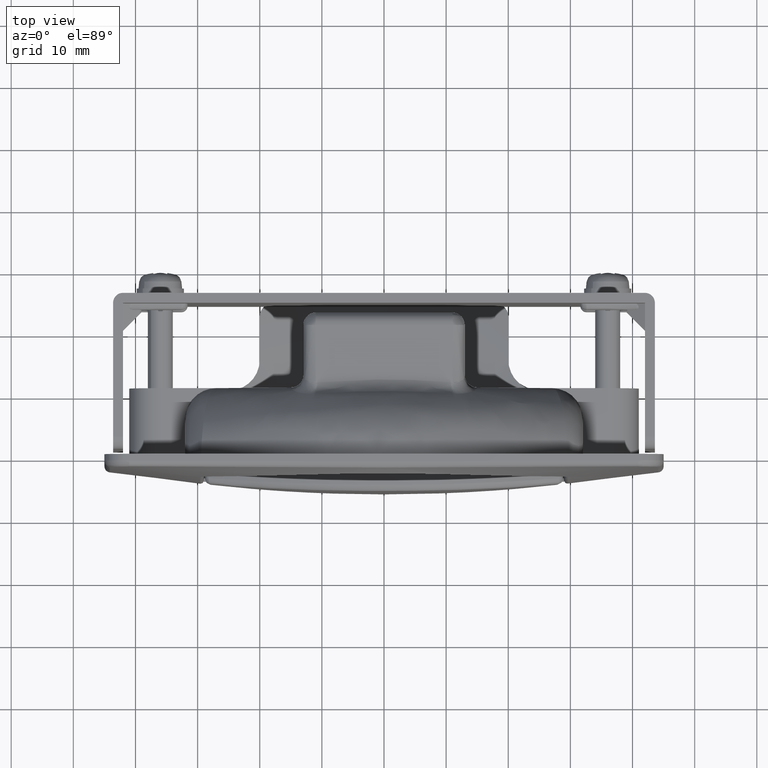
[diagram: clean part render]
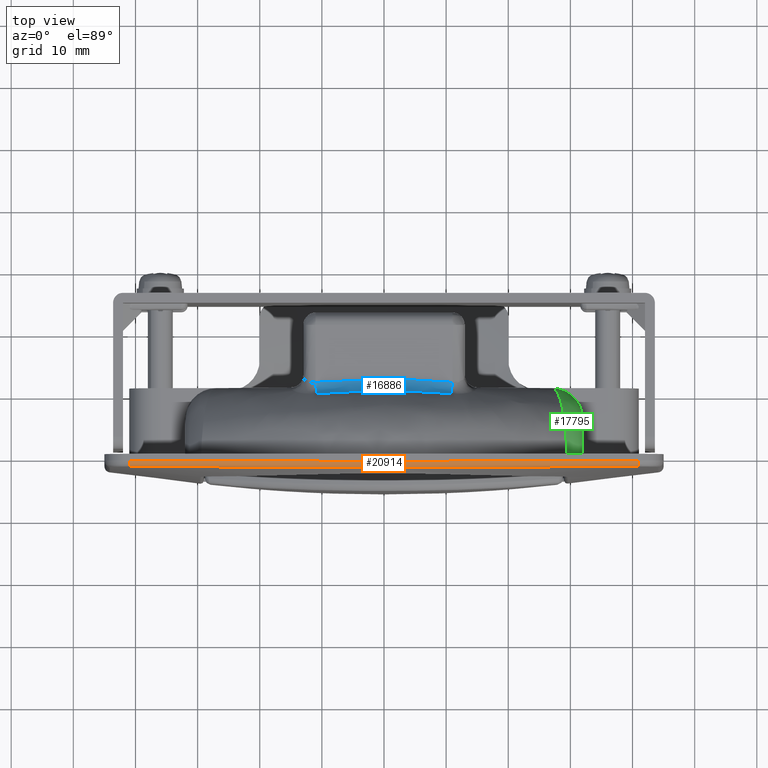
[diagram: same view with three faces highlighted in distinct colors, each labeled with its STEP entity id]
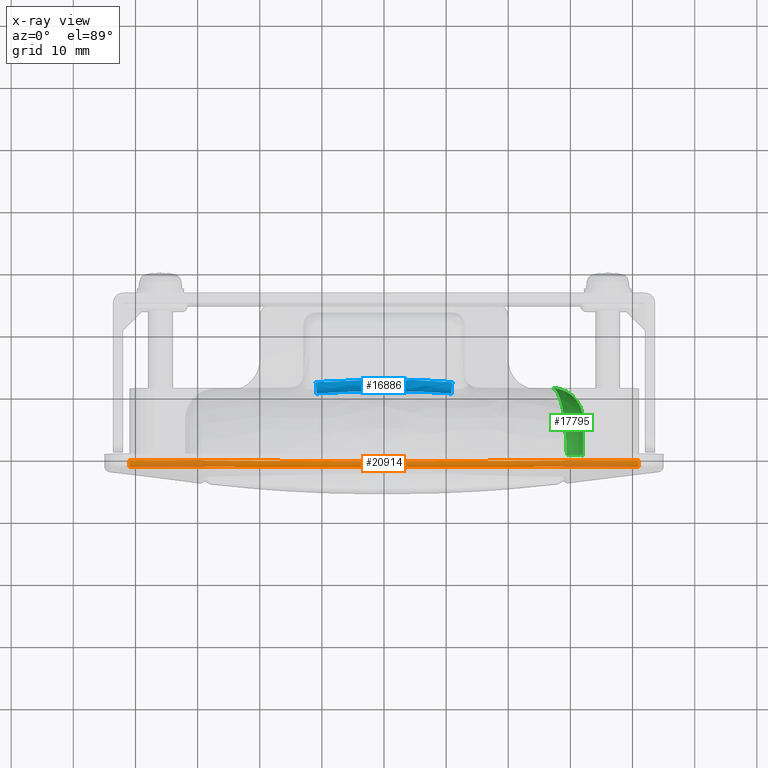
[diagram: x-ray of the same camera — body ghosted, the three highlighted faces saturated]
A machine part, top view with three faces highlighted in distinct colors.
The next image is the same camera in x-ray (body ghosted, the three faces saturated) — at least one of them is partly hidden behind the body in this view.
Their STEP definitions:

[orange] entity #20914 — the highlighted face is a freeform B-spline surface patch.
#16127=CARTESIAN_POINT('',(40.999999999999247,-1.034605952653366,60.0));
#16128=VERTEX_POINT('',#16127);
#16338=CARTESIAN_POINT('',(-41.0,-1.034605952653366,60.0));
#16339=VERTEX_POINT('',#16338);
#19166=CARTESIAN_POINT('',(-41.0,-1.034605952653326,60.0));
#19167=CARTESIAN_POINT('',(-34.166786675064309,-1.092456547469044,60.000000000000021));
#19168=CARTESIAN_POINT('',(-27.333534925995409,-1.142350992070396,60.000000000000007));
#19169=CARTESIAN_POINT('',(-13.666886508458949,-1.212132685023938,60.000000000000007));
#19170=CARTESIAN_POINT('',(-6.833492713697812,-1.232614966788253,60.000000000000007));
#19171=CARTESIAN_POINT('',(6.833492713697828,-1.232614966788255,60.000000000000007));
#19172=CARTESIAN_POINT('',(13.666886508458211,-1.212132685023942,59.999999999999993));
#19173=CARTESIAN_POINT('',(27.333534925994659,-1.142350992070405,59.999999999999957));
#19174=CARTESIAN_POINT('',(34.166786675063562,-1.092456547469056,60.000000000000007));
#19175=CARTESIAN_POINT('',(40.999999999999247,-1.034605952653340,60.0));
#19176=B_SPLINE_CURVE_WITH_KNOTS('',3,(#19166,#19167,#19168,#19169,#19170,#19171,#19172,#19173,#19174,#19175),.UNSPECIFIED.,.F.,.U.,(4,2,2,2,4),(0.0,0.250000000000000,0.500000000000000,0.750000000000000,1.0),.UNSPECIFIED.);
#19177=EDGE_CURVE('',#16339,#16128,#19176,.T.);
#20510=CARTESIAN_POINT('',(-41.008460582849857,-2.033955529790160,59.035054831539412));
#20511=VERTEX_POINT('',#20510);
#20512=CARTESIAN_POINT('',(-41.008460582849857,-2.033955529790160,59.035054831539412));
#20513=CARTESIAN_POINT('',(-41.008415942304623,-2.028682664859518,59.195007509945967));
#20514=CARTESIAN_POINT('',(-41.007767921230837,-1.952139523988996,59.464119182404787));
#20515=CARTESIAN_POINT('',(-41.005860704276117,-1.726862318919273,59.740961212939439));
#20516=CARTESIAN_POINT('',(-41.003383591981986,-1.434270051024323,59.941153487296553));
#20517=CARTESIAN_POINT('',(-41.001354900000017,-1.194644423536032,60.000295543768793));
#20518=CARTESIAN_POINT('',(-41.0,-1.034605952653366,60.0));
#20519=B_SPLINE_CURVE_WITH_KNOTS('',3,(#20512,#20513,#20514,#20515,#20516,#20517,#20518),.UNSPECIFIED.,.F.,.U.,(4,1,1,1,4),(0.000179830967145,0.480097523445805,0.816004155894794,1.055951855351917,1.535860876471716),.UNSPECIFIED.);
#20520=EDGE_CURVE('',#20511,#16339,#20519,.T.);
#20819=CARTESIAN_POINT('',(-41.827836604414863,-2.027650771109185,59.014053753863386));
#20820=CARTESIAN_POINT('',(-41.554721701862370,-2.029913698285514,59.016452023445758));
#20821=CARTESIAN_POINT('',(-41.281597728054578,-2.032176700622849,59.018850372684462));
#20822=CARTESIAN_POINT('',(-27.340235983186876,-2.147689571113166,59.141271901124021));
#20823=CARTESIAN_POINT('',(-13.670834158831335,-2.202536267515709,59.243723189432011));
#20824=CARTESIAN_POINT('',(13.670997526057780,-2.202535802740083,59.243722386544960));
#20825=CARTESIAN_POINT('',(27.340299132102221,-2.147689047271286,59.141271347111797));
#20826=CARTESIAN_POINT('',(41.281596467561855,-2.032176711079089,59.018850383742880));
#20827=CARTESIAN_POINT('',(41.554719180975027,-2.029913719197175,59.016452045561799));
#20828=CARTESIAN_POINT('',(41.827832823230210,-2.027650802475455,59.014053787036083));
#20829=CARTESIAN_POINT('',(-41.828194867803546,-2.027457462742825,59.020963737289918));
#20830=CARTESIAN_POINT('',(-41.554955341816175,-2.029704381566151,59.023353285223109));
#20831=CARTESIAN_POINT('',(-41.281711265396403,-2.031951337808853,59.025742872950971));
#20832=CARTESIAN_POINT('',(-27.340226830624466,-2.146595746184276,59.147664638099457));
#20833=CARTESIAN_POINT('',(-13.670827838136109,-2.200987209852342,59.249585489596846));
#20834=CARTESIAN_POINT('',(13.670991205289070,-2.200986749077576,59.249584691064690));
#20835=CARTESIAN_POINT('',(27.340289979581890,-2.146595226590620,59.147664086050362));
#20836=CARTESIAN_POINT('',(41.281710003663193,-2.031951348190487,59.025742883981081));
#20837=CARTESIAN_POINT('',(41.554952818399272,-2.029704402329001,59.023353307282846));
#20838=CARTESIAN_POINT('',(41.828191082751836,-2.027457493886490,59.020963770378884));
#20839=CARTESIAN_POINT('',(-41.878955170324119,-2.000068699432089,60.000000000006047));
#20840=CARTESIAN_POINT('',(-41.588019395997321,-2.000082481555735,60.000000000004022));
#20841=CARTESIAN_POINT('',(-41.297759805140480,-2.000096231647417,60.000000000002011));
#20842=CARTESIAN_POINT('',(-27.339006531303660,-2.000757481588261,59.999999999905178));
#20843=CARTESIAN_POINT('',(-13.670018745923533,-2.002697235720432,59.999999999999986));
#20844=CARTESIAN_POINT('',(13.670182103409722,-2.002697223380213,59.999999999999993));
#20845=CARTESIAN_POINT('',(27.339069685454131,-2.000757478715073,60.0));
#20846=CARTESIAN_POINT('',(41.297758367945420,-2.000096231712982,59.999999999999993));
#20847=CARTESIAN_POINT('',(41.588016514131183,-2.000082481687219,59.999999999999993));
#20848=CARTESIAN_POINT('',(41.878950836269610,-2.000068699629843,60.0));
#20849=CARTESIAN_POINT('',(-41.819566343566017,-1.020712481652010,59.999999999999986));
#20850=CARTESIAN_POINT('',(-41.546362565914421,-1.023034819978351,59.999999999999964));
#20851=CARTESIAN_POINT('',(-41.273154238425782,-1.025357196980075,59.999999999999972));
#20852=CARTESIAN_POINT('',(-27.333493788911344,-1.143849730269179,60.000000000000746));
#20853=CARTESIAN_POINT('',(-13.666851694266279,-1.226526602821456,59.999999999999957));
#20854=CARTESIAN_POINT('',(13.667015013913570,-1.226525933150712,60.000000000000007));
#20855=CARTESIAN_POINT('',(27.333556937387993,-1.143849193742074,60.0));
#20856=CARTESIAN_POINT('',(41.273152976702093,-1.025357207700038,59.999999999999972));
#20857=CARTESIAN_POINT('',(41.546360042516568,-1.023034841417846,59.999999999999986));
#20858=CARTESIAN_POINT('',(41.819562558542849,-1.020712513810624,60.0));
#20859=CARTESIAN_POINT('',(-41.819147180533641,-1.013800240000043,59.999999999999886));
#20860=CARTESIAN_POINT('',(-41.546068206976976,-1.016130724997222,59.999999999999943));
#20861=CARTESIAN_POINT('',(-41.272980163358284,-1.018461287399273,59.999999999999936));
#20862=CARTESIAN_POINT('',(-27.333452441909067,-1.137422699182383,60.000000000001421));
#20863=CARTESIAN_POINT('',(-13.666826952997031,-1.220463093699017,59.999999999999993));
#20864=CARTESIAN_POINT('',(13.666990272356671,-1.220462420841127,60.0));
#20865=CARTESIAN_POINT('',(27.333515590357266,-1.137422160842540,60.000000000000007));
#20866=CARTESIAN_POINT('',(41.272978902874755,-1.018461298144878,60.000000000000007));
#20867=CARTESIAN_POINT('',(41.546065686107895,-1.016130746487586,59.999999999999986));
#20868=CARTESIAN_POINT('',(41.819143399376465,-1.013800272234337,60.000000000000007));
#20876=(BOUNDED_SURFACE()B_SPLINE_SURFACE(3,2,((#20819,#20829,#20839,#20849,#20859),(#20820,#20830,#20840,#20850,#20860),(#20821,#20831,#20841,#20851,#20861),(#20822,#20832,#20842,#20852,#20862),(#20823,#20833,#20843,#20853,#20863),(#20824,#20834,#20844,#20854,#20864),(#20825,#20835,#20845,#20855,#20865),(#20826,#20836,#20846,#20856,#20866),(#20827,#20837,#20847,#20857,#20867),(#20828,#20838,#20848,#20858,#20868)),.UNSPECIFIED.,.F.,.F.,.U.)B_SPLINE_SURFACE_WITH_KNOTS((4,2,2,2,4),(3,1,1,3),(0.0,0.842466918082779,42.965812822220222,85.089158726357667,85.931625644440402),(0.0,0.016242809716745,1.640523781359821,1.656766591077459),.UNSPECIFIED.)GEOMETRIC_REPRESENTATION_ITEM()RATIONAL_B_SPLINE_SURFACE(((1.005662225856947,1.002831112928474,0.716888707158110,1.002831112928629,1.005662225857259),(1.005645525347856,1.002822762673928,0.717723732612676,1.002822762674083,1.005645525348166),(1.005628824838764,1.002814412419382,0.718558758067242,1.002814412419537,1.005628824839074),(1.004777098875090,1.002388549437545,0.761145056250106,1.002388549437676,1.004777098875353),(1.004154040628689,1.002077020314345,0.792297968569567,1.002077020314459,1.004154040628917),(1.004154045640302,1.002077022820151,0.792297717988920,1.002077022820265,1.004154045640530),(1.004777103984394,1.002388551992197,0.761144800784941,1.002388551992328,1.004777103984656),(1.005628824736578,1.002814412368289,0.718558763176552,1.002814412368444,1.005628824736887),(1.005645525143483,1.002822762571742,0.717723742831290,1.002822762571897,1.005645525143794),(1.005662225550389,1.002831112775195,0.716888722486027,1.002831112775350,1.005662225550700)))REPRESENTATION_ITEM('')SURFACE());
#20877=CARTESIAN_POINT('',(41.008460582849096,-2.033955529790175,59.035054831539412));
#20878=VERTEX_POINT('',#20877);
#20879=CARTESIAN_POINT('',(41.008460582849096,-2.033955529790175,59.035054831539412));
#20880=CARTESIAN_POINT('',(41.008419785527231,-2.029136619909225,59.178996033923902));
#20881=CARTESIAN_POINT('',(41.007934615028688,-1.971829110340704,59.400873785896849));
#20882=CARTESIAN_POINT('',(41.006348017470323,-1.784422920086715,59.682613856894008));
#20883=CARTESIAN_POINT('',(41.003924384997227,-1.498147597272541,59.922047323832892));
#20884=CARTESIAN_POINT('',(41.001490378418062,-1.210646902646069,60.000374973043762));
#20885=CARTESIAN_POINT('',(40.999999999999247,-1.034605952653366,60.0));
#20886=B_SPLINE_CURVE_WITH_KNOTS('',3,(#20879,#20880,#20881,#20882,#20883,#20884,#20885),.UNSPECIFIED.,.F.,.U.,(4,1,1,1,4),(0.000179830966730,0.432102314982669,0.672065187396919,1.007957673913533,1.535860876471733),.UNSPECIFIED.);
#20887=EDGE_CURVE('',#20878,#16128,#20886,.T.);
#20888=ORIENTED_EDGE('',*,*,#20887,.T.);
#20889=ORIENTED_EDGE('',*,*,#19177,.F.);
#20890=ORIENTED_EDGE('',*,*,#20520,.F.);
#20891=CARTESIAN_POINT('',(41.008460582849096,-2.033955529790175,59.035054831539412));
#20892=CARTESIAN_POINT('',(37.591222429568923,-2.061842269153153,59.064814647162713));
#20893=CARTESIAN_POINT('',(34.173950840234447,-2.086477777206835,59.093705388055660));
#20894=CARTESIAN_POINT('',(27.339321001040549,-2.128220673843528,59.146539695681142));
#20895=CARTESIAN_POINT('',(23.921983815464500,-2.145357810767917,59.170474776963047));
#20896=CARTESIAN_POINT('',(17.087253606975938,-2.172461614501583,59.210624264086832));
#20897=CARTESIAN_POINT('',(13.669860754078311,-2.182469266818932,59.226849117481088));
#20898=CARTESIAN_POINT('',(6.835010816954016,-2.195930665973302,59.249261997222639));
#20899=CARTESIAN_POINT('',(3.417553970609560,-2.199431447681215,59.255471673160102));
#20900=CARTESIAN_POINT('',(-3.417435853789756,-2.199431530235400,59.255471816700833));
#20901=CARTESIAN_POINT('',(-6.834924957157164,-2.195930807673542,59.249262237143682));
#20902=CARTESIAN_POINT('',(-13.669861449668190,-2.182469292851280,59.226849156830497));
#20903=CARTESIAN_POINT('',(-17.087280251058630,-2.172461534667254,59.210624135453777));
#20904=CARTESIAN_POINT('',(-23.922031643430351,-2.145357595275634,59.170474468122052));
#20905=CARTESIAN_POINT('',(-27.339363959908798,-2.128220429697695,59.146539375728089));
#20906=CARTESIAN_POINT('',(-34.173958456299822,-2.086477712463195,59.093705317045007));
#20907=CARTESIAN_POINT('',(-37.591220540803867,-2.061842284566616,59.064814663611472));
#20908=CARTESIAN_POINT('',(-41.008460582849878,-2.033955529790160,59.035054831539412));
#20909=B_SPLINE_CURVE_WITH_KNOTS('',3,(#20891,#20892,#20893,#20894,#20895,#20896,#20897,#20898,#20899,#20900,#20901,#20902,#20903,#20904,#20905,#20906,#20907,#20908),.UNSPECIFIED.,.F.,.U.,(4,2,2,2,2,2,2,2,4),(0.0,0.125000000000000,0.250000000000000,0.375000000000000,0.500000000000000,0.625000000000000,0.750000000000000,0.875000000000000,1.0),.UNSPECIFIED.);
#20910=EDGE_CURVE('',#20878,#20511,#20909,.T.);
#20911=ORIENTED_EDGE('',*,*,#20910,.F.);
#20912=EDGE_LOOP('',(#20888,#20889,#20890,#20911));
#20913=FACE_OUTER_BOUND('',#20912,.T.);
#20914=ADVANCED_FACE('',(#20913),#20876,.T.);

[blue] entity #16886 — the highlighted face is a freeform B-spline surface patch.
#15320=CARTESIAN_POINT('',(-11.0,11.749488862630839,46.0));
#15321=VERTEX_POINT('',#15320);
#15327=CARTESIAN_POINT('',(11.0,11.749488862630860,46.0));
#15328=VERTEX_POINT('',#15327);
#15329=CARTESIAN_POINT('',(-11.0,11.749488862630839,46.0));
#15330=CARTESIAN_POINT('',(-10.085275265246150,11.832044393462990,46.000000000000007));
#15331=CARTESIAN_POINT('',(-9.169966846083526,11.900217542705620,46.000000000000007));
#15332=CARTESIAN_POINT('',(-7.338405641518662,12.013294013499371,46.0));
#15333=CARTESIAN_POINT('',(-6.422152637312505,12.058191943572879,46.000000000000007));
#15334=CARTESIAN_POINT('',(-4.588857063244063,12.128532367895790,46.000000000000007));
#15335=CARTESIAN_POINT('',(-2.754771776972103,12.179413745367180,46.0));
#15336=CARTESIAN_POINT('',(-0.919290532315818,12.195897756959621,46.000000000000007));
#15337=CARTESIAN_POINT('',(0.916859093199320,12.195912408715399,46.000000000000007));
#15338=CARTESIAN_POINT('',(2.752454843395342,12.179457325086689,45.999999999999993));
#15339=CARTESIAN_POINT('',(4.586889544544190,12.128595528016280,46.000000000000007));
#15340=CARTESIAN_POINT('',(6.420667457310410,12.058261234418410,46.000000000000007));
#15341=CARTESIAN_POINT('',(7.337228090770762,12.013359952329671,45.999999999999993));
#15342=CARTESIAN_POINT('',(9.169563195760064,11.900249217842910,45.999999999999993));
#15343=CARTESIAN_POINT('',(10.085452901118250,11.832028361510270,46.000000000000007));
#15344=CARTESIAN_POINT('',(11.0,11.749488862630860,46.0));
#15345=B_SPLINE_CURVE_WITH_KNOTS('',3,(#15329,#15330,#15331,#15332,#15333,#15334,#15335,#15336,#15337,#15338,#15339,#15340,#15341,#15342,#15343,#15344),.UNSPECIFIED.,.F.,.U.,(4,2,2,1,2,1,2,2,4),(0.0,0.125000000000000,0.250000000000000,0.375000000000000,0.500000000000000,0.625000000000000,0.750000000000000,0.875000000000000,1.0),.UNSPECIFIED.);
#15346=EDGE_CURVE('',#15321,#15328,#15345,.T.);
#15871=CARTESIAN_POINT('',(-10.834544563539399,9.916223680946750,47.217847027640801));
#15872=VERTEX_POINT('',#15871);
#16056=CARTESIAN_POINT('',(10.834544563539280,9.916223680946761,47.217847027640801));
#16057=VERTEX_POINT('',#16056);
#16089=CARTESIAN_POINT('',(10.834544563539280,9.916223680946761,47.217847027640801));
#16090=CARTESIAN_POINT('',(9.933444470091528,9.988152461383859,47.239872617427672));
#16091=CARTESIAN_POINT('',(9.031229737716403,10.047392635432990,47.259472322902504));
#16092=CARTESIAN_POINT('',(7.226332384284754,10.145461226116341,47.293374599008303));
#16093=CARTESIAN_POINT('',(6.323552482120703,10.184294932795501,47.307679951428433));
#16094=CARTESIAN_POINT('',(4.517431006014910,10.245069773135549,47.330696871837603));
#16095=CARTESIAN_POINT('',(3.614089325174080,10.267007437598890,47.339408070091977));
#16096=CARTESIAN_POINT('',(1.806902852950897,10.296034748520629,47.351045328376550));
#16097=CARTESIAN_POINT('',(0.903057616764900,10.303123165395560,47.353971206051227));
#16098=CARTESIAN_POINT('',(-0.905115526996715,10.303112313755109,47.353966770447308));
#16099=CARTESIAN_POINT('',(-1.808911994125626,10.296013020781480,47.351036459479602));
#16100=CARTESIAN_POINT('',(-3.615902101365849,10.266967754781890,47.339392319388708));
#16101=CARTESIAN_POINT('',(-4.519095784832783,10.245022933076269,47.330678668777153));
#16102=CARTESIAN_POINT('',(-6.324809789850447,10.184243431632700,47.307660911010800));
#16103=CARTESIAN_POINT('',(-7.227330236029472,10.145412113041569,47.293357170314117));
#16104=CARTESIAN_POINT('',(-9.031576941955875,10.047368661461800,47.259464485767190));
#16105=CARTESIAN_POINT('',(-9.933303464955715,9.988163716878701,47.239876064016229));
#16106=CARTESIAN_POINT('',(-10.834544563539410,9.916223680946750,47.217847027640801));
#16107=B_SPLINE_CURVE_WITH_KNOTS('',3,(#16089,#16090,#16091,#16092,#16093,#16094,#16095,#16096,#16097,#16098,#16099,#16100,#16101,#16102,#16103,#16104,#16105,#16106),.UNSPECIFIED.,.F.,.U.,(4,2,2,2,2,2,2,2,4),(0.0,0.125000000000000,0.250000000000000,0.375000000000000,0.500000000000000,0.625000000000000,0.750000000000000,0.875000000000000,1.0),.UNSPECIFIED.);
#16108=EDGE_CURVE('',#16057,#15872,#16107,.T.);
#16748=CARTESIAN_POINT('',(-10.834544563539399,9.916223680946750,47.217847027640801));
#16749=CARTESIAN_POINT('',(-10.840533765152079,9.982584720616963,47.060926148302592));
#16750=CARTESIAN_POINT('',(-10.856150150870119,10.155616062548340,46.764299654616167));
#16751=CARTESIAN_POINT('',(-10.884238954665520,10.466843224948621,46.451777049157080));
#16752=CARTESIAN_POINT('',(-10.917191270128811,10.831958653530970,46.209248200691633));
#16753=CARTESIAN_POINT('',(-10.954028934765700,11.240124195855630,46.043837654856439));
#16754=CARTESIAN_POINT('',(-10.984676230969470,11.579699747103220,45.999957962950923));
#16755=CARTESIAN_POINT('',(-11.0,11.749488862630839,46.0));
#16756=B_SPLINE_CURVE_WITH_KNOTS('',3,(#16748,#16749,#16750,#16751,#16752,#16753,#16754,#16755),.UNSPECIFIED.,.F.,.U.,(4,1,1,1,1,4),(0.000000129870866,0.511439841131598,1.022907883121740,1.315115839378424,1.826583236134149,2.338023269023774),.UNSPECIFIED.);
#16757=EDGE_CURVE('',#15872,#15321,#16756,.T.);
#16793=CARTESIAN_POINT('',(11.048727389745027,9.890457986170432,47.232771275925401));
#16794=CARTESIAN_POINT('',(10.977074599950388,9.896190558069135,47.234545290240732));
#16795=CARTESIAN_POINT('',(10.905422560693427,9.901923069921171,47.236319285973906));
#16796=CARTESIAN_POINT('',(9.042732940109692,10.050947304784438,47.282436653649839));
#16797=CARTESIAN_POINT('',(7.238170109331803,10.145401212936177,47.317213893949649));
#16798=CARTESIAN_POINT('',(3.621837551723821,10.267727912530907,47.363948882446863));
#16799=CARTESIAN_POINT('',(1.808708773072213,10.295686779299450,47.375935642776383));
#16800=CARTESIAN_POINT('',(-1.819707300247921,10.295569972663142,47.375887496960601));
#16801=CARTESIAN_POINT('',(-3.631867602680482,10.267488823297921,47.363852447877278));
#16802=CARTESIAN_POINT('',(-7.244052490146809,10.145101602715654,47.317104538949486));
#16803=CARTESIAN_POINT('',(-9.044073684811432,10.050840029683814,47.282403488650957));
#16804=CARTESIAN_POINT('',(-10.905368914797716,9.901927362213927,47.236320612972484));
#16805=CARTESIAN_POINT('',(-10.976967306919535,9.896199142753828,47.234547944268620));
#16806=CARTESIAN_POINT('',(-11.048566448339656,9.890470863346208,47.232775257013181));
#16807=CARTESIAN_POINT('',(11.049110089688293,9.894754745818066,47.222698788579251));
#16808=CARTESIAN_POINT('',(10.977458776224644,9.900480694278970,47.224461509302309));
#16809=CARTESIAN_POINT('',(10.905807838643048,9.906206612701595,47.226224220778114));
#16810=CARTESIAN_POINT('',(9.043015386437718,10.055069949032326,47.272051473615505));
#16811=CARTESIAN_POINT('',(7.238378548008080,10.149383856898757,47.306614907601436));
#16812=CARTESIAN_POINT('',(3.621927657511076,10.271518496210216,47.353068706629074));
#16813=CARTESIAN_POINT('',(1.808753706127688,10.299424337929596,47.364984634469849));
#16814=CARTESIAN_POINT('',(-1.819752506951826,10.299307738399895,47.364936772599393));
#16815=CARTESIAN_POINT('',(-3.631957993946394,10.271279816722402,47.352972844667406));
#16816=CARTESIAN_POINT('',(-7.244261164106151,10.149084682803419,47.306506219067927));
#16817=CARTESIAN_POINT('',(-9.044356218936008,10.054962793168464,47.272018502110072));
#16818=CARTESIAN_POINT('',(-10.905754197275535,9.906210899580884,47.226225539836797));
#16819=CARTESIAN_POINT('',(-10.977351492868827,9.900489268087135,47.224464147434865));
#16820=CARTESIAN_POINT('',(-11.048949163723528,9.894767606604731,47.222702745801016));
#16821=CARTESIAN_POINT('',(11.095566018691022,10.416338207326357,46.0));
#16822=CARTESIAN_POINT('',(11.024108843643289,10.421426824573361,46.000000000000007));
#16823=CARTESIAN_POINT('',(10.952606660087037,10.426518646971880,46.0));
#16824=CARTESIAN_POINT('',(9.077611442220483,10.560041039892033,46.0));
#16825=CARTESIAN_POINT('',(7.264074314828986,10.640353634781517,45.999999999999993));
#16826=CARTESIAN_POINT('',(3.633133296377618,10.742918981110586,46.0));
#16827=CARTESIAN_POINT('',(1.814354371252460,10.765291037850290,46.000000000000007));
#16828=CARTESIAN_POINT('',(-1.825387229413264,10.765195996853306,46.0));
#16829=CARTESIAN_POINT('',(-3.643198930386014,10.742722667960603,45.999999999999993));
#16830=CARTESIAN_POINT('',(-7.269985413674422,10.640098255130539,46.0));
#16831=CARTESIAN_POINT('',(-9.078962776443733,10.559944808471787,46.0));
#16832=CARTESIAN_POINT('',(-10.952553582282036,10.426522426756696,46.000000000000007));
#16833=CARTESIAN_POINT('',(-11.024002762090568,10.421434378869217,46.0));
#16834=CARTESIAN_POINT('',(-11.095407007339729,10.416349530867175,46.0));
#16835=CARTESIAN_POINT('',(11.220394982256730,11.740636429142528,46.0));
#16836=CARTESIAN_POINT('',(11.147259707081336,11.747244849309343,45.999999999999986));
#16837=CARTESIAN_POINT('',(11.074124815572326,11.753853234808515,46.000000000000028));
#16838=CARTESIAN_POINT('',(9.172752293349943,11.925659090332498,45.999999999999986));
#16839=CARTESIAN_POINT('',(7.337708878702722,12.034480598041410,45.999999999999986));
#16840=CARTESIAN_POINT('',(3.667882844030443,12.175395610544385,46.000000000000021));
#16841=CARTESIAN_POINT('',(1.831693056306738,12.207586578956162,45.999999999999979));
#16842=CARTESIAN_POINT('',(-1.842831350069972,12.207452066828534,46.000000000000007));
#16843=CARTESIAN_POINT('',(-3.678050357050966,12.175120253711981,45.999999999999986));
#16844=CARTESIAN_POINT('',(-7.343689224271595,12.034135396166331,46.000000000000021));
#16845=CARTESIAN_POINT('',(-9.174125221010444,11.925535050003585,45.999999999999993));
#16846=CARTESIAN_POINT('',(-11.074069890219448,11.753858197166762,45.999999999999993));
#16847=CARTESIAN_POINT('',(-11.147149855741054,11.747254774083187,45.999999999999986));
#16848=CARTESIAN_POINT('',(-11.220230204294618,11.740651316389277,45.999999999999986));
#16849=CARTESIAN_POINT('',(11.221423311112774,11.751545869040129,46.0));
#16850=CARTESIAN_POINT('',(11.148273887299787,11.758163314486213,46.000000000000021));
#16851=CARTESIAN_POINT('',(11.075125229700122,11.764780690616982,45.999999999999986));
#16852=CARTESIAN_POINT('',(9.173529033556605,11.936808143910730,45.999999999999972));
#16853=CARTESIAN_POINT('',(7.338306186043952,12.045789448477311,45.999999999999979));
#16854=CARTESIAN_POINT('',(3.668162268624613,12.186914298639024,45.999999999999993));
#16855=CARTESIAN_POINT('',(1.831832161041858,12.219157822022359,46.0));
#16856=CARTESIAN_POINT('',(-1.842971301971976,12.219023098933974,46.000000000000007));
#16857=CARTESIAN_POINT('',(-3.678330605970682,12.186638516073751,46.000000000000014));
#16858=CARTESIAN_POINT('',(-7.344287105466552,12.045443747592815,45.999999999999972));
#16859=CARTESIAN_POINT('',(-9.174902143170774,11.936683957804442,45.999999999999993));
#16860=CARTESIAN_POINT('',(-11.075070288847771,11.764785659550812,45.999999999999993));
#16861=CARTESIAN_POINT('',(-11.148164004327917,11.758173252468497,46.000000000000014));
#16862=CARTESIAN_POINT('',(-11.221258484754335,11.751560776185487,46.0));
#16870=(BOUNDED_SURFACE()B_SPLINE_SURFACE(3,2,((#16793,#16807,#16821,#16835,#16849),(#16794,#16808,#16822,#16836,#16850),(#16795,#16809,#16823,#16837,#16851),(#16796,#16810,#16824,#16838,#16852),(#16797,#16811,#16825,#16839,#16853),(#16798,#16812,#16826,#16840,#16854),(#16799,#16813,#16827,#16841,#16855),(#16800,#16814,#16828,#16842,#16856),(#16801,#16815,#16829,#16843,#16857),(#16802,#16816,#16830,#16844,#16858),(#16803,#16817,#16831,#16845,#16859),(#16804,#16818,#16832,#16846,#16860),(#16805,#16819,#16833,#16847,#16861),(#16806,#16820,#16834,#16848,#16862)),.UNSPECIFIED.,.F.,.F.,.U.)B_SPLINE_SURFACE_WITH_KNOTS((4,2,2,2,2,2,4),(3,1,1,3),(0.0,0.220440436599583,5.731451351586242,11.242462266572900,16.753473181559571,22.264484096546219,22.484924533145701),(0.0,0.025622399067414,2.587858740467181,2.613481104234182),.UNSPECIFIED.)GEOMETRIC_REPRESENTATION_ITEM()RATIONAL_B_SPLINE_SURFACE(((1.003304453479065,1.001652226739533,0.834777555953098,1.001652224463232,1.003304448926464),(1.003309708164048,1.001654854082024,0.834514822069547,1.001654851802104,1.003309703604207),(1.003314962849031,1.001657481424516,0.834252088185996,1.001657479140975,1.003314958281951),(1.003451584658586,1.001725792329293,0.827421007213672,1.001725789951640,1.003451579903280),(1.003555943821334,1.001777971910667,0.822203056337053,1.001777969461125,1.003555938922250),(1.003696933692335,1.001848466846167,0.815153572596322,1.001848464299503,1.003696928599007),(1.003733452828448,1.001866726414224,0.813327618331467,1.001866723842404,1.003733447684807),(1.003733306592432,1.001866653296216,0.813334930122101,1.001866650724496,1.003733301448992),(1.003696641388935,1.001848320694467,0.815168187746002,1.001848318148005,1.003696636296009),(1.003555615311210,1.001777807655605,0.822219481820387,1.001777805206289,1.003555610412579),(1.003451466003047,1.001725733001524,0.827426939982382,1.001725730623952,1.003451461247904),(1.003314967595253,1.001657483797626,0.834251850875248,1.001657481514083,1.003314963028166),(1.003309717656491,1.001654858828246,0.834514347448050,1.001654856548319,1.003309713096637),(1.003304467717730,1.001652233858865,0.834776844020853,1.001652231582555,1.003304463165109)))REPRESENTATION_ITEM('')SURFACE());
#16871=CARTESIAN_POINT('',(10.834544563539280,9.916223680946761,47.217847027640801));
#16872=CARTESIAN_POINT('',(10.841387061023470,9.992039336580765,47.038492224735862));
#16873=CARTESIAN_POINT('',(10.858685173618310,10.183704404875529,46.723392493151991));
#16874=CARTESIAN_POINT('',(10.897479167575170,10.613546300076040,46.322102691750182));
#16875=CARTESIAN_POINT('',(10.945272700956391,11.143104122603930,46.060900943403702));
#16876=CARTESIAN_POINT('',(10.982487196213331,11.555444991346841,45.999933833354447));
#16877=CARTESIAN_POINT('',(11.0,11.749488862630860,46.0));
#16878=B_SPLINE_CURVE_WITH_KNOTS('',3,(#16871,#16872,#16873,#16874,#16875,#16876,#16877),.UNSPECIFIED.,.F.,.U.,(4,1,1,1,4),(0.000000129873635,0.584505942140543,1.095964220077145,1.753517484235434,2.338023269023783),.UNSPECIFIED.);
#16879=EDGE_CURVE('',#16057,#15328,#16878,.T.);
#16880=ORIENTED_EDGE('',*,*,#16879,.T.);
#16881=ORIENTED_EDGE('',*,*,#15346,.F.);
#16882=ORIENTED_EDGE('',*,*,#16757,.F.);
#16883=ORIENTED_EDGE('',*,*,#16108,.F.);
#16884=EDGE_LOOP('',(#16880,#16881,#16882,#16883));
#16885=FACE_OUTER_BOUND('',#16884,.T.);
#16886=ADVANCED_FACE('',(#16885),#16870,.F.);

[green] entity #17795 — the highlighted face is a freeform B-spline surface patch.
#15586=CARTESIAN_POINT('',(29.422701568877400,0.0,48.290578810994099));
#15587=VERTEX_POINT('',#15586);
#15762=CARTESIAN_POINT('',(32.0,0.0,43.802621332188949));
#15763=VERTEX_POINT('',#15762);
#15769=CARTESIAN_POINT('',(32.0,-1.962985E-015,43.802621332188949));
#15770=CARTESIAN_POINT('',(32.0,-1.962985E-015,44.030975825022381));
#15771=CARTESIAN_POINT('',(31.985672640986220,-1.367172E-031,44.256933750436332));
#15772=CARTESIAN_POINT('',(31.928856989249969,0.0,44.704139062764881));
#15773=CARTESIAN_POINT('',(31.886371759447520,0.0,44.925386962020532));
#15774=CARTESIAN_POINT('',(31.800948537372040,0.0,45.253629779586227));
#15775=CARTESIAN_POINT('',(31.768848192270632,0.0,45.362437533889967));
#15776=CARTESIAN_POINT('',(31.715084834672950,0.0,45.524710293824938));
#15777=CARTESIAN_POINT('',(31.696205334913820,0.0,45.578694605506470));
#15778=CARTESIAN_POINT('',(31.656841993186561,0.0,45.685550221256847));
#15779=CARTESIAN_POINT('',(31.636328880235322,0.0,45.738516192988719));
#15780=CARTESIAN_POINT('',(31.529649166682209,0.0,46.001060790122722));
#15781=CARTESIAN_POINT('',(31.431191078970780,0.0,46.203811936994583));
#15782=CARTESIAN_POINT('',(31.208318585489302,0.0,46.594896430622732));
#15783=CARTESIAN_POINT('',(31.083908547976730,0.0,46.783232203788756));
#15784=CARTESIAN_POINT('',(30.877029413116890,0.0,47.054479897495433));
#15785=CARTESIAN_POINT('',(30.804487296440438,0.0,47.143189648954902));
#15786=CARTESIAN_POINT('',(30.654879788202251,0.0,47.313979305355240));
#15787=CARTESIAN_POINT('',(30.577571098931742,0.0,47.396408613998723));
#15788=CARTESIAN_POINT('',(30.338280717321339,0.0,47.634978143934021));
#15789=CARTESIAN_POINT('',(30.168966663143411,0.0,47.782437796223903));
#15790=CARTESIAN_POINT('',(29.810772578875010,0.0,48.054193513442343));
#15791=CARTESIAN_POINT('',(29.621897739913230,0.0,48.178495723996413));
#15792=CARTESIAN_POINT('',(29.422701568877699,0.0,48.290578810994297));
#15793=B_SPLINE_CURVE_WITH_KNOTS('',3,(#15769,#15770,#15771,#15772,#15773,#15774,#15775,#15776,#15777,#15778,#15779,#15780,#15781,#15782,#15783,#15784,#15785,#15786,#15787,#15788,#15789,#15790,#15791,#15792),.UNSPECIFIED.,.F.,.U.,(4,2,2,2,2,2,2,2,2,2,2,4),(0.0,0.124999999999996,0.249999999999992,0.312499999999990,0.343749999999989,0.374999999999988,0.499999999999991,0.624999999999993,0.687499999999994,0.749999999999995,0.874999999999998,1.0),.UNSPECIFIED.);
#15794=EDGE_CURVE('',#15763,#15587,#15793,.T.);
#15804=CARTESIAN_POINT('',(32.0,5.995119576810979,35.0));
#15805=VERTEX_POINT('',#15804);
#15811=CARTESIAN_POINT('',(32.0,5.995119576810970,35.0));
#15812=CARTESIAN_POINT('',(32.000000000000007,5.988272507520287,35.238305382590767));
#15813=CARTESIAN_POINT('',(32.000000000000007,5.974217046115895,35.476125983202508));
#15814=CARTESIAN_POINT('',(32.000000000000007,5.942096488329943,35.832114594315001));
#15815=CARTESIAN_POINT('',(32.0,5.929531574652302,35.950765097162197));
#15816=CARTESIAN_POINT('',(31.999999999999989,5.900800732170601,36.186763880640292));
#15817=CARTESIAN_POINT('',(32.0,5.884629170325693,36.304213524524769));
#15818=CARTESIAN_POINT('',(32.0,5.794758549247498,36.888718450335887));
#15819=CARTESIAN_POINT('',(32.0,5.694154805522812,37.347584562192537));
#15820=CARTESIAN_POINT('',(31.999999999999989,5.433875814981493,38.247336772601322));
#15821=CARTESIAN_POINT('',(32.0,5.274237610917027,38.688234146119228));
#15822=CARTESIAN_POINT('',(32.000000000000007,4.986357256107966,39.334841338845408));
#15823=CARTESIAN_POINT('',(32.0,4.882293673943529,39.547910560845182));
#15824=CARTESIAN_POINT('',(31.999999999999989,4.713138439167172,39.863539270955307));
#15825=CARTESIAN_POINT('',(31.999999999999989,4.654734655788215,39.967770267139642));
#15826=CARTESIAN_POINT('',(32.0,4.534334454956726,40.173364970278151));
#15827=CARTESIAN_POINT('',(32.0,4.472265509897583,40.274865159985289));
#15828=CARTESIAN_POINT('',(32.0,4.280383984679953,40.575426936481257));
#15829=CARTESIAN_POINT('',(31.999999999999989,4.144906532663898,40.770556545428370));
#15830=CARTESIAN_POINT('',(32.0,3.929918848818189,41.055080376845112));
#15831=CARTESIAN_POINT('',(32.0,3.856292013545639,41.148558254775637));
#15832=CARTESIAN_POINT('',(32.0,3.705005608232888,41.332714896350133));
#15833=CARTESIAN_POINT('',(32.0,3.627216810022782,41.423536562838223));
#15834=CARTESIAN_POINT('',(32.0,3.229466787919796,41.868656272508879));
#15835=CARTESIAN_POINT('',(32.000000000000007,2.885356126492368,42.194053031269043));
#15836=CARTESIAN_POINT('',(32.0,2.328629121655041,42.634091359045797));
#15837=CARTESIAN_POINT('',(31.999999999999989,2.136261198869866,42.772723317982177));
#15838=CARTESIAN_POINT('',(31.999999999999989,1.836961925218420,42.967937716874133));
#15839=CARTESIAN_POINT('',(32.0,1.735169847478153,43.031015654409643));
#15840=CARTESIAN_POINT('',(31.999999999999989,1.529182697897609,43.152009348422382));
#15841=CARTESIAN_POINT('',(31.999999999999989,1.425037049076929,43.209914287465907));
#15842=CARTESIAN_POINT('',(32.000000000000007,0.898540686469491,43.486462010816403));
#15843=CARTESIAN_POINT('',(32.000000000000007,0.459031037884912,43.666501043486761));
#15844=CARTESIAN_POINT('',(32.0,-3.085501E-015,43.802621332188949));
#15845=B_SPLINE_CURVE_WITH_KNOTS('',3,(#15811,#15812,#15813,#15814,#15815,#15816,#15817,#15818,#15819,#15820,#15821,#15822,#15823,#15824,#15825,#15826,#15827,#15828,#15829,#15830,#15831,#15832,#15833,#15834,#15835,#15836,#15837,#15838,#15839,#15840,#15841,#15842,#15843,#15844),.UNSPECIFIED.,.F.,.U.,(4,2,2,2,2,2,2,2,2,2,2,2,2,2,2,2,4),(0.0,0.062500000000002,0.093750000000002,0.125000000000002,0.250000000000001,0.375000000000000,0.437499999999999,0.468749999999998,0.499999999999997,0.562499999999997,0.593749999999997,0.624999999999998,0.750000000000000,0.812500000000001,0.843750000000001,0.875000000000001,1.0),.UNSPECIFIED.);
#15846=EDGE_CURVE('',#15805,#15763,#15845,.T.);
#15978=CARTESIAN_POINT('',(27.070023696858101,10.996078390292960,35.000000000000902));
#15979=VERTEX_POINT('',#15978);
#15980=CARTESIAN_POINT('',(29.422701568877400,2.807791E-017,48.290578810994099));
#15981=CARTESIAN_POINT('',(29.417786920198768,0.195412961494992,48.258432615499132));
#15982=CARTESIAN_POINT('',(29.412147380126111,0.390085157031563,48.221576217546087));
#15983=CARTESIAN_POINT('',(29.399445183030970,0.776978877566398,48.138680853126203));
#15984=CARTESIAN_POINT('',(29.392399840586219,0.968712134856680,48.092754927849853));
#15985=CARTESIAN_POINT('',(29.369208442635571,1.538881814833215,47.941834481963163));
#15986=CARTESIAN_POINT('',(29.351012176270611,1.912298452824075,47.823724074803600));
#15987=CARTESIAN_POINT('',(29.309164033486979,2.646062408965604,47.553373526623922));
#15988=CARTESIAN_POINT('',(29.285512068748659,3.006409015225007,47.401131494109151));
#15989=CARTESIAN_POINT('',(29.245829739654418,3.537125966033916,47.147186050532127));
#15990=CARTESIAN_POINT('',(29.231900291382651,3.712395341146561,47.058267481417850));
#15991=CARTESIAN_POINT('',(29.209927114824019,3.972822622928040,46.918428669901971));
#15992=CARTESIAN_POINT('',(29.202413572866622,4.059319895359155,46.870679994358767));
#15993=CARTESIAN_POINT('',(29.187078011218780,4.230856492034097,46.773373717367512));
#15994=CARTESIAN_POINT('',(29.179255740430079,4.315906526761789,46.723814310296660));
#15995=CARTESIAN_POINT('',(29.139374405863212,4.737611427848981,46.471545229736691));
#15996=CARTESIAN_POINT('',(29.105010760960599,5.063653021489255,46.255447784123092));
#15997=CARTESIAN_POINT('',(29.031341377411099,5.693893605454901,45.795732382515020));
#15998=CARTESIAN_POINT('',(28.992035461072419,5.998090377588461,45.552111579399288));
#15999=CARTESIAN_POINT('',(28.929251670666190,6.438202667419079,45.166317195088283));
#16000=CARTESIAN_POINT('',(28.907685240704609,6.582205686229234,45.034320268254717));
#16001=CARTESIAN_POINT('',(28.863243222087728,6.864796751686790,44.763517390774147));
#16002=CARTESIAN_POINT('',(28.840343951072970,7.003520748855459,44.624568402678861));
#16003=CARTESIAN_POINT('',(28.769775987941049,7.410615124065862,44.198368058178033));
#16004=CARTESIAN_POINT('',(28.720586292828571,7.667988699517582,43.903865248290543));
#16005=CARTESIAN_POINT('',(28.617828005187789,8.155682814247419,43.294895992029872));
#16006=CARTESIAN_POINT('',(28.564259366939641,8.386000717437705,42.980427535668731));
#16007=CARTESIAN_POINT('',(28.480481358003122,8.711455099648495,42.493980654149993));
#16008=CARTESIAN_POINT('',(28.451983758001958,8.816598154154914,42.329370888184357));
#16009=CARTESIAN_POINT('',(28.393812522877582,9.020190924838357,41.995227776353872));
#16010=CARTESIAN_POINT('',(28.364223071606979,9.118330120894168,41.826181109769891));
#16011=CARTESIAN_POINT('',(28.214392230779978,9.589010303052893,40.975043513777642));
#16012=CARTESIAN_POINT('',(28.087897543787498,9.904177829933571,40.271736397181940));
#16013=CARTESIAN_POINT('',(27.887476497035969,10.290316941075760,39.185412758819282));
#16014=CARTESIAN_POINT('',(27.818882997517761,10.404511200979350,38.818046846433099));
#16015=CARTESIAN_POINT('',(27.713158838893481,10.554006117427051,38.259132183563914));
#16016=CARTESIAN_POINT('',(27.677444684792270,10.600200391495520,38.071514635584570));
#16017=CARTESIAN_POINT('',(27.605039372464820,10.685254668712570,37.693637086758649));
#16018=CARTESIAN_POINT('',(27.568297431659168,10.724157971599690,37.503116912793097));
#16019=CARTESIAN_POINT('',(27.494130959357211,10.794238545440880,37.121097343507742));
#16020=CARTESIAN_POINT('',(27.456696909898749,10.825440790367010,36.929544248612601));
#16021=CARTESIAN_POINT('',(27.381110886640780,10.880215298088300,36.545361978066758));
#16022=CARTESIAN_POINT('',(27.342940211760759,10.903794368350139,36.352639911460010));
#16023=CARTESIAN_POINT('',(27.227556481800260,10.962993323408870,35.774025672774620));
#16024=CARTESIAN_POINT('',(27.149422747505170,10.987146651041680,35.387430367445887));
#16025=CARTESIAN_POINT('',(27.070023696858101,10.996078390292960,35.000000000000902));
#16026=B_SPLINE_CURVE_WITH_KNOTS('',3,(#15980,#15981,#15982,#15983,#15984,#15985,#15986,#15987,#15988,#15989,#15990,#15991,#15992,#15993,#15994,#15995,#15996,#15997,#15998,#15999,#16000,#16001,#16002,#16003,#16004,#16005,#16006,#16007,#16008,#16009,#16010,#16011,#16012,#16013,#16014,#16015,#16016,#16017,#16018,#16019,#16020,#16021,#16022,#16023,#16024,#16025),.UNSPECIFIED.,.F.,.U.,(4,2,2,2,2,2,2,2,2,2,2,2,2,2,2,2,2,2,2,2,2,2,4),(0.0,0.031249999999999,0.062499999999999,0.124999999999998,0.187499999999997,0.218749999999996,0.234374999999996,0.249999999999995,0.312499999999994,0.374999999999993,0.406249999999993,0.437499999999993,0.499999999999993,0.562499999999992,0.593749999999992,0.624999999999992,0.749999999999994,0.812499999999995,0.843749999999996,0.874999999999997,0.906249999999998,0.937499999999999,1.0),.UNSPECIFIED.);
#16027=EDGE_CURVE('',#15587,#15979,#16026,.T.);
#17619=CARTESIAN_POINT('',(31.999999999999986,-0.898509986443548,43.955672511085147));
#17620=CARTESIAN_POINT('',(32.000000000000007,-0.882465231353796,43.952973261640963));
#17621=CARTESIAN_POINT('',(31.999999999999986,-0.866420499273445,43.950274016067624));
#17622=CARTESIAN_POINT('',(32.000000000000007,-0.596628589824879,43.904886245574403));
#17623=CARTESIAN_POINT('',(31.999999999999986,-0.342096928989133,43.847364221402785));
#17624=CARTESIAN_POINT('',(31.999999999999986,0.153658483661585,43.706312211515204));
#17625=CARTESIAN_POINT('',(31.999999999999993,0.396216823866258,43.622695750893804));
#17626=CARTESIAN_POINT('',(32.000000000000036,0.871096606613288,43.430296428128017));
#17627=CARTESIAN_POINT('',(31.999999999999993,1.103418149544654,43.321509453585328));
#17628=CARTESIAN_POINT('',(32.000000000000007,1.557929621205713,43.079045214372449));
#17629=CARTESIAN_POINT('',(32.000000000000014,1.781085712847265,42.944610486541137));
#17630=CARTESIAN_POINT('',(31.999999999999986,2.422859935199757,42.512271262996144));
#17631=CARTESIAN_POINT('',(32.0,2.817263392974833,42.184417072679970));
#17632=CARTESIAN_POINT('',(32.000000000000007,3.362573355299722,41.637868637257654));
#17633=CARTESIAN_POINT('',(32.000000000000007,3.537216523433282,41.445684260805926));
#17634=CARTESIAN_POINT('',(32.0,3.867484507721811,41.047430790717172));
#17635=CARTESIAN_POINT('',(32.0,4.023025753626778,40.841648253113100));
#17636=CARTESIAN_POINT('',(31.999999999999993,4.315898012135437,40.417457386023287));
#17637=CARTESIAN_POINT('',(32.000000000000007,4.453226702771035,40.199045452817288));
#17638=CARTESIAN_POINT('',(32.0,4.710204161511810,39.749969287940495));
#17639=CARTESIAN_POINT('',(32.000000000000014,4.829613713583418,39.519503015009732));
#17640=CARTESIAN_POINT('',(32.0,5.156753688602186,38.822039783097665));
#17641=CARTESIAN_POINT('',(32.0,5.335853255643369,38.345231001606564));
#17642=CARTESIAN_POINT('',(32.000000000000014,5.623928881077883,37.370365559097465));
#17643=CARTESIAN_POINT('',(31.999999999999986,5.732846867161773,36.872275185346084));
#17644=CARTESIAN_POINT('',(32.0,5.882634907607911,35.855518637141422));
#17645=CARTESIAN_POINT('',(31.999999999999993,5.922769770371028,35.335433113094943));
#17646=CARTESIAN_POINT('',(32.0,5.929022842389548,34.808679361041897));
#17647=CARTESIAN_POINT('',(32.000000000000007,5.929213584578629,34.792611392613750));
#17648=CARTESIAN_POINT('',(31.999999999999986,5.929404324243667,34.776543636808462));
#17649=CARTESIAN_POINT('',(32.000000000000014,-0.894499951417208,43.980627873599367));
#17650=CARTESIAN_POINT('',(32.000000000000007,-0.878396771913256,43.977921878408289));
#17651=CARTESIAN_POINT('',(31.999999999999993,-0.862293603971851,43.975215885160189));
#17652=CARTESIAN_POINT('',(31.999999999999993,-0.591517369406343,43.929714362407417));
#17653=CARTESIAN_POINT('',(32.000000000000007,-0.336053961051133,43.872048038912496));
#17654=CARTESIAN_POINT('',(32.0,0.161526068148214,43.730641570005794));
#17655=CARTESIAN_POINT('',(31.999999999999986,0.404981328680395,43.646814961445195));
#17656=CARTESIAN_POINT('',(32.000000000000014,0.881630100842062,43.453930953094670));
#17657=CARTESIAN_POINT('',(31.999999999999986,1.114822962286436,43.344869788983324));
#17658=CARTESIAN_POINT('',(32.000000000000014,1.571055655150888,43.101792715118293));
#17659=CARTESIAN_POINT('',(31.999999999999993,1.795064737250460,42.967017862636169));
#17660=CARTESIAN_POINT('',(31.999999999999993,2.439315620570819,42.533583569856752));
#17661=CARTESIAN_POINT('',(32.000000000000007,2.835282411492754,42.204896159419341));
#17662=CARTESIAN_POINT('',(31.999999999999986,3.382839541223063,41.656940785333937));
#17663=CARTESIAN_POINT('',(32.000000000000007,3.558213224973362,41.464261880122244));
#17664=CARTESIAN_POINT('',(31.999999999999986,3.889893176621430,41.064978762317786));
#17665=CARTESIAN_POINT('',(32.0,4.046114910895692,40.858662542414152));
#17666=CARTESIAN_POINT('',(32.000000000000014,4.340302405984903,40.433365817373918));
#17667=CARTESIAN_POINT('',(31.999999999999986,4.478265439666060,40.214382427698318));
#17668=CARTESIAN_POINT('',(31.999999999999979,4.736468890023958,39.764124302032542));
#17669=CARTESIAN_POINT('',(31.999999999999986,4.856468841194119,39.533048754632965));
#17670=CARTESIAN_POINT('',(32.000000000000021,5.185281442897570,38.833737953411642));
#17671=CARTESIAN_POINT('',(32.000000000000007,5.365395453663162,38.355649403527821));
#17672=CARTESIAN_POINT('',(32.0,5.655316280105881,37.378121361265109));
#17673=CARTESIAN_POINT('',(31.999999999999986,5.765062881115363,36.878655542800850));
#17674=CARTESIAN_POINT('',(31.999999999999993,5.916332294697908,35.859027508941381));
#17675=CARTESIAN_POINT('',(32.000000000000007,5.957117750761746,35.337450067037238));
#17676=CARTESIAN_POINT('',(31.999999999999993,5.963943296652123,34.809117490401654));
#17677=CARTESIAN_POINT('',(31.999999999999993,5.964151524646905,34.792999565948826));
#17678=CARTESIAN_POINT('',(32.0,5.964359751259983,34.776881748447074));
#17679=CARTESIAN_POINT('',(31.999999999999996,-0.423613321900688,46.911062761445599));
#17680=CARTESIAN_POINT('',(32.000000000000007,-0.400629277893521,46.907688854434369));
#17681=CARTESIAN_POINT('',(31.999999999999996,-0.377643317650331,46.904314666132258));
#17682=CARTESIAN_POINT('',(32.000000000000007,0.009157412953441,46.847534854166859));
#17683=CARTESIAN_POINT('',(31.999999999999996,0.374766744238367,46.775549886262674));
#17684=CARTESIAN_POINT('',(31.999999999999996,1.089049823529876,46.598873616517800));
#17685=CARTESIAN_POINT('',(32.000000000000895,1.439626490859757,46.494075022544799));
#17686=CARTESIAN_POINT('',(31.999999999999112,2.128968574700196,46.252646333006624));
#17687=CARTESIAN_POINT('',(32.000000000000909,2.467730060851291,46.116012489911597));
#17688=CARTESIAN_POINT('',(31.999999999999094,3.134364068436602,45.811016190059966));
#17689=CARTESIAN_POINT('',(31.999999999999996,3.463685662136117,45.641697836402699));
#17690=CARTESIAN_POINT('',(32.000000000000007,4.417932639741898,45.096156450979649));
#17691=CARTESIAN_POINT('',(32.0,5.014151263568079,44.681237707711283));
#17692=CARTESIAN_POINT('',(31.999999999999996,5.857451673240973,43.985754366329793));
#17693=CARTESIAN_POINT('',(31.999999999999986,6.130991622196411,43.740624077186766));
#17694=CARTESIAN_POINT('',(31.999999999999996,6.656012888123761,43.231095382579106));
#17695=CARTESIAN_POINT('',(32.000000000000007,6.907320695525353,42.967071368365410));
#17696=CARTESIAN_POINT('',(32.000000000000007,7.389309712200269,42.420914605416456));
#17697=CARTESIAN_POINT('',(31.999999999999996,7.619985928385894,42.138780148749596));
#17698=CARTESIAN_POINT('',(32.0,8.061918066476190,41.556329385491146));
#17699=CARTESIAN_POINT('',(32.000000000000007,8.272819570959667,41.256257749129432));
#17700=CARTESIAN_POINT('',(32.000000000000007,8.868247638586617,40.343985320646638));
#17701=CARTESIAN_POINT('',(32.000000000000007,9.219662966690855,39.714901955956748));
#17702=CARTESIAN_POINT('',(32.0,9.844353416046531,38.413229216822479));
#17703=CARTESIAN_POINT('',(32.000000000000007,10.117539921545571,37.740660363496097));
#17704=CARTESIAN_POINT('',(32.0,10.591157601927391,36.345811918857741));
#17705=CARTESIAN_POINT('',(31.999999999999996,10.791172556726087,35.621311469866086));
#17706=CARTESIAN_POINT('',(31.999999999999996,10.955058891027464,34.871738505108553));
#17707=CARTESIAN_POINT('',(31.999999999999996,10.960138259169415,34.848506811914064));
#17708=CARTESIAN_POINT('',(32.0,10.965222387611918,34.825253346357570));
#17709=CARTESIAN_POINT('',(29.405304074860947,-0.195078473933769,48.333759861385900));
#17710=CARTESIAN_POINT('',(29.404679308513973,-0.168787267184758,48.329694184068195));
#17711=CARTESIAN_POINT('',(29.404054542615299,-0.142496079300245,48.325628509667723));
#17712=CARTESIAN_POINT('',(29.393549047118391,0.299592639870528,48.257263824277089));
#17713=CARTESIAN_POINT('',(29.380219651461527,0.716672333059319,48.170638857389143));
#17714=CARTESIAN_POINT('',(29.347423323834231,1.529041007128129,47.958333647159371));
#17715=CARTESIAN_POINT('',(29.327936977962473,1.926510928621842,47.832524346854107));
#17716=CARTESIAN_POINT('',(29.282903351120446,2.704688146878576,47.543241338053818));
#17717=CARTESIAN_POINT('',(29.257355759847400,3.085393008892407,47.379762607123745));
#17718=CARTESIAN_POINT('',(29.200109604463108,3.830215348096010,47.015718390132903));
#17719=CARTESIAN_POINT('',(29.168229887603513,4.195913847727609,46.814020330291385));
#17720=CARTESIAN_POINT('',(29.065065953154207,5.247630302752164,46.166047670253896));
#17721=CARTESIAN_POINT('',(28.986054491705502,5.894005029452399,45.675495703912226));
#17722=CARTESIAN_POINT('',(28.852178609214139,6.787799176943475,44.860029250962754));
#17723=CARTESIAN_POINT('',(28.804778081211047,7.074052345674072,44.573647816943037));
#17724=CARTESIAN_POINT('',(28.705728050775686,7.615416003479647,43.981105280426959));
#17725=CARTESIAN_POINT('',(28.654153873726873,7.870388378211195,43.675369350631996));
#17726=CARTESIAN_POINT('',(28.546902724509543,8.350515944702066,43.046197030826605));
#17727=CARTESIAN_POINT('',(28.491225973410987,8.575666653725639,42.722757371590063));
#17728=CARTESIAN_POINT('',(28.375682038329376,8.997022616513290,42.058963185658094));
#17729=CARTESIAN_POINT('',(28.315860595238519,9.192835537100503,41.718910764551168));
#17730=CARTESIAN_POINT('',(28.133100694308833,9.729333194750485,40.691878088727563));
#17731=CARTESIAN_POINT('',(28.005890535346570,10.023169827595387,39.992428832573950));
#17732=CARTESIAN_POINT('',(27.740521766423534,10.496041640954953,38.568890142161010));
#17733=CARTESIAN_POINT('',(27.602365054306070,10.674983138657025,37.844766364937158));
#17734=CARTESIAN_POINT('',(27.314418233247999,10.921484845916980,36.374349664621768));
#17735=CARTESIAN_POINT('',(27.164145148763346,10.987848234947242,35.626102990828336));
#17736=CARTESIAN_POINT('',(27.008784246098767,10.998790253792718,34.872639979612366));
#17737=CARTESIAN_POINT('',(27.004044626395427,10.999124063697444,34.849653964003203));
#17738=CARTESIAN_POINT('',(26.999305038119783,10.999457871388703,34.826668100810899));
#17739=CARTESIAN_POINT('',(29.383223282574367,-0.193133648546211,48.345866975304787));
#17740=CARTESIAN_POINT('',(29.382594135917127,-0.166814381583953,48.341794897957477));
#17741=CARTESIAN_POINT('',(29.381964990161542,-0.140495152338888,48.337722826445756));
#17742=CARTESIAN_POINT('',(29.371385914399561,0.302062264120802,48.269251009467574));
#17743=CARTESIAN_POINT('',(29.357963427399518,0.719576976342520,48.182490771899850));
#17744=CARTESIAN_POINT('',(29.324938954184780,1.532770559794186,47.969857009378138));
#17745=CARTESIAN_POINT('',(29.305317683596535,1.930632456568267,47.843854461080760));
#17746=CARTESIAN_POINT('',(29.259974111695314,2.709546572476973,47.554132508187180));
#17747=CARTESIAN_POINT('',(29.234251817691209,3.090596180639815,47.390408395294315));
#17748=CARTESIAN_POINT('',(29.176617261244356,3.836053854173613,47.025826384933559));
#17749=CARTESIAN_POINT('',(29.144523049644960,4.202043870383236,46.823834707269306));
#17750=CARTESIAN_POINT('',(29.040673859545571,5.254525879531736,46.174939483955669));
#17751=CARTESIAN_POINT('',(28.961146887116726,5.901276245748870,45.683712370391561));
#17752=CARTESIAN_POINT('',(28.826417085810391,6.795413067954062,44.867184248056184));
#17753=CARTESIAN_POINT('',(28.778719767215147,7.081743383440529,44.580441459052565));
#17754=CARTESIAN_POINT('',(28.679059392610707,7.623182816335469,43.987176958143387));
#17755=CARTESIAN_POINT('',(28.627172652746236,7.878154647485161,43.681081132841499));
#17756=CARTESIAN_POINT('',(28.519283272329577,8.358204112006860,43.051198325800321));
#17757=CARTESIAN_POINT('',(28.463281432443395,8.583277876043987,42.727408276807729));
#17758=CARTESIAN_POINT('',(28.347076795134523,9.004403010107138,42.062930266428516));
#17759=CARTESIAN_POINT('',(28.286920656982332,9.200062518039502,41.722545032484419));
#17760=CARTESIAN_POINT('',(28.103169119978926,9.735998391925582,40.694570938327033));
#17761=CARTESIAN_POINT('',(27.975297835379251,10.029324251888184,39.994554537075636));
#17762=CARTESIAN_POINT('',(27.708628829050777,10.500921170935818,38.570055656778322));
#17763=CARTESIAN_POINT('',(27.569837489944359,10.679106325403199,37.845536395806967));
#17764=CARTESIAN_POINT('',(27.280666853362835,10.923864273030485,36.374555228913763));
#17765=CARTESIAN_POINT('',(27.129808324342907,10.989244723973194,35.626137012861463));
#17766=CARTESIAN_POINT('',(26.973887422317731,10.999096008088948,34.872646282404808));
#17767=CARTESIAN_POINT('',(26.969131248269854,10.999396509312584,34.849661980679002));
#17768=CARTESIAN_POINT('',(26.964375137114814,10.999697006562572,34.826677982883950));
#17776=(BOUNDED_SURFACE()B_SPLINE_SURFACE(3,2,((#17619,#17649,#17679,#17709,#17739),(#17620,#17650,#17680,#17710,#17740),(#17621,#17651,#17681,#17711,#17741),(#17622,#17652,#17682,#17712,#17742),(#17623,#17653,#17683,#17713,#17743),(#17624,#17654,#17684,#17714,#17744),(#17625,#17655,#17685,#17715,#17745),(#17626,#17656,#17686,#17716,#17746),(#17627,#17657,#17687,#17717,#17747),(#17628,#17658,#17688,#17718,#17748),(#17629,#17659,#17689,#17719,#17749),(#17630,#17660,#17690,#17720,#17750),(#17631,#17661,#17691,#17721,#17751),(#17632,#17662,#17692,#17722,#17752),(#17633,#17663,#17693,#17723,#17753),(#17634,#17664,#17694,#17724,#17754),(#17635,#17665,#17695,#17725,#17755),(#17636,#17666,#17696,#17726,#17756),(#17637,#17667,#17697,#17727,#17757),(#17638,#17668,#17698,#17728,#17758),(#17639,#17669,#17699,#17729,#17759),(#17640,#17670,#17700,#17730,#17760),(#17641,#17671,#17701,#17731,#17761),(#17642,#17672,#17702,#17732,#17762),(#17643,#17673,#17703,#17733,#17763),(#17644,#17674,#17704,#17734,#17764),(#17645,#17675,#17705,#17735,#17765),(#17646,#17676,#17706,#17736,#17766),(#17647,#17677,#17707,#17737,#17767),(#17648,#17678,#17708,#17738,#17768)),.UNSPECIFIED.,.F.,.F.,.U.)B_SPLINE_SURFACE_WITH_KNOTS((4,2,2,2,2,2,2,2,2,2,2,2,2,2,4),(3,1,1,3),(0.0,0.080306208295375,1.350364838324420,2.620423468353471,3.890482098382523,5.160540728411569,7.700657988469671,8.970716618498717,10.240775248527770,11.510833878556820,12.780892508585870,15.321009768643970,17.861127028702072,20.401244288760161,20.481183725718690),(0.0,0.082503897195837,8.326507244055392,8.408952742013197),.UNSPECIFIED.)GEOMETRIC_REPRESENTATION_ITEM()RATIONAL_B_SPLINE_SURFACE(((1.002765618767009,1.001382809383504,0.861826100667463,1.001381830581083,1.002763661162166),(1.002766337789202,1.001383168894601,0.861790177386445,1.001382189837705,1.002764379675410),(1.002767056811396,1.001383528405698,0.861754254105426,1.001382549094327,1.002765098188653),(1.002779147312347,1.001389573656174,0.861150197002066,1.001388590065756,1.002777180131512),(1.002794552067985,1.001397276033992,0.860380555437565,1.001396286991553,1.002792573983107),(1.002832474642735,1.001416237321367,0.858485894434956,1.001415234857444,1.002830469714889),(1.002855037795157,1.001427518897579,0.857358610085910,1.001426508448149,1.002853016896297),(1.002907319915908,1.001453659957954,0.854746527547364,1.001452631004938,1.002905262009875),(1.002937039374967,1.001468519687484,0.853261704840347,1.001467480216214,1.002934960432428),(1.003003854291029,1.001501927145514,0.849923545005788,1.001500864027239,1.003001728054478),(1.003041163639229,1.001520581819615,0.848059521596636,1.001519505496888,1.003039010993775),(1.003162378857386,1.001581189428693,0.842003452137290,1.001580070205711,1.003160140411422),(1.003255786643686,1.001627893321843,0.837336678026877,1.001626741040159,1.003253482080318),(1.003415782910073,1.001707891455037,0.829343057116766,1.001706682547785,1.003413365095570),(1.003472695826166,1.001736347913083,0.826499614038933,1.001735118863323,1.003470237726645),(1.003592318503553,1.001796159251777,0.820523109981218,1.001794887865390,1.003589775730781),(1.003654935352090,1.001827467676045,0.817394691043117,1.001826174128426,1.003652348256851),(1.003785984119957,1.001892992059978,0.810847324690643,1.001891652131834,1.003783304263667),(1.003854416108987,1.001927208054494,0.807428373793943,1.001925843907032,1.003851687814064),(1.003997433806489,1.001998716903245,0.800283024198716,1.001997302139237,1.003994604278475),(1.004071969587163,1.002035984793582,0.796559119957676,1.002034543650016,1.004069087300032),(1.004301425232675,1.002150712616337,0.785095218409713,1.002149190264275,1.004298380528551),(1.004463367819212,1.002231683909606,0.777004356821411,1.002230104243139,1.004460208486277),(1.004807266395164,1.002403633197582,0.759822738088905,1.002401931819199,1.004803863638397),(1.004989215438362,1.002494607719181,0.750732327986744,1.002492841945745,1.004985683891490),(1.005376398461609,1.002688199230805,0.731388162147373,1.002686296426306,1.005372592852611),(1.005582315501039,1.002791157750519,0.721100279877995,1.002789182068262,1.005578364136524),(1.005800430857251,1.002900215428626,0.710202953886535,1.002898162551405,1.005796325102810),(1.005807085682235,1.002903542841118,0.709870470202078,1.002901487608634,1.005802975217269),(1.005813740507220,1.002906870253610,0.709537986517620,1.002904812665864,1.005809625331728)))REPRESENTATION_ITEM('')SURFACE());
#17777=CARTESIAN_POINT('',(27.070023696858101,10.996078390292960,35.000000000000902));
#17778=CARTESIAN_POINT('',(27.637703977333711,10.988486136771529,35.000000000000753));
#17779=CARTESIAN_POINT('',(28.506988396804850,10.825650330609561,35.000000000000490));
#17780=CARTESIAN_POINT('',(29.480455997209461,10.360188448990170,35.000000000000227));
#17781=CARTESIAN_POINT('',(30.151909865984340,9.902815513926619,35.000000000000107));
#17782=CARTESIAN_POINT('',(30.882044035070429,9.223014940351956,34.999999999999353));
#17783=CARTESIAN_POINT('',(31.469112817914159,8.333899446932342,35.000000000001222));
#17784=CARTESIAN_POINT('',(31.897339848371910,7.191198381269970,34.999999999998977));
#17785=CARTESIAN_POINT('',(32.000254154189847,6.461436009464117,34.999999999999780));
#17786=CARTESIAN_POINT('',(32.0,5.995119576810979,35.0));
#17787=B_SPLINE_CURVE_WITH_KNOTS('',3,(#17777,#17778,#17779,#17780,#17781,#17782,#17783,#17784,#17785,#17786),.UNSPECIFIED.,.F.,.U.,(4,1,1,1,1,1,1,4),(0.000000157768198,1.703014246472496,2.615361318426796,3.223601471016576,4.135853772024193,5.595619814243495,6.386324400444438,7.785216239218481),.UNSPECIFIED.);
#17788=EDGE_CURVE('',#15979,#15805,#17787,.T.);
#17789=ORIENTED_EDGE('',*,*,#17788,.F.);
#17790=ORIENTED_EDGE('',*,*,#16027,.F.);
#17791=ORIENTED_EDGE('',*,*,#15794,.F.);
#17792=ORIENTED_EDGE('',*,*,#15846,.F.);
#17793=EDGE_LOOP('',(#17789,#17790,#17791,#17792));
#17794=FACE_OUTER_BOUND('',#17793,.T.);
#17795=ADVANCED_FACE('',(#17794),#17776,.T.);